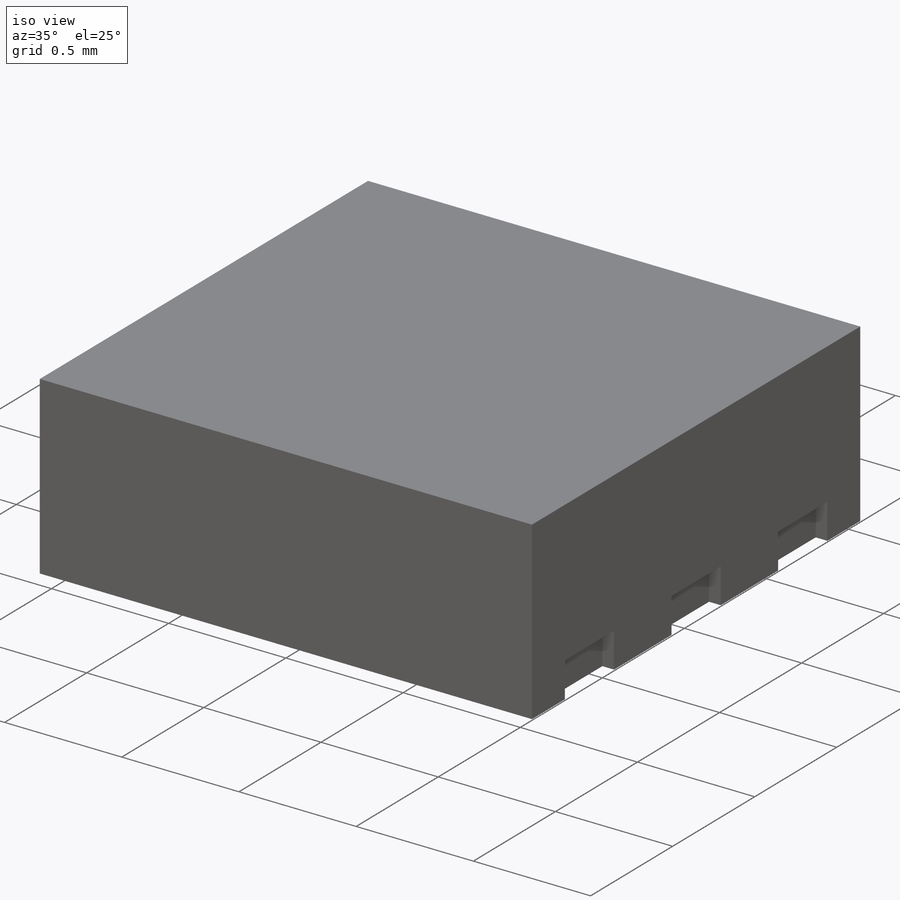
[diagram: iso view]
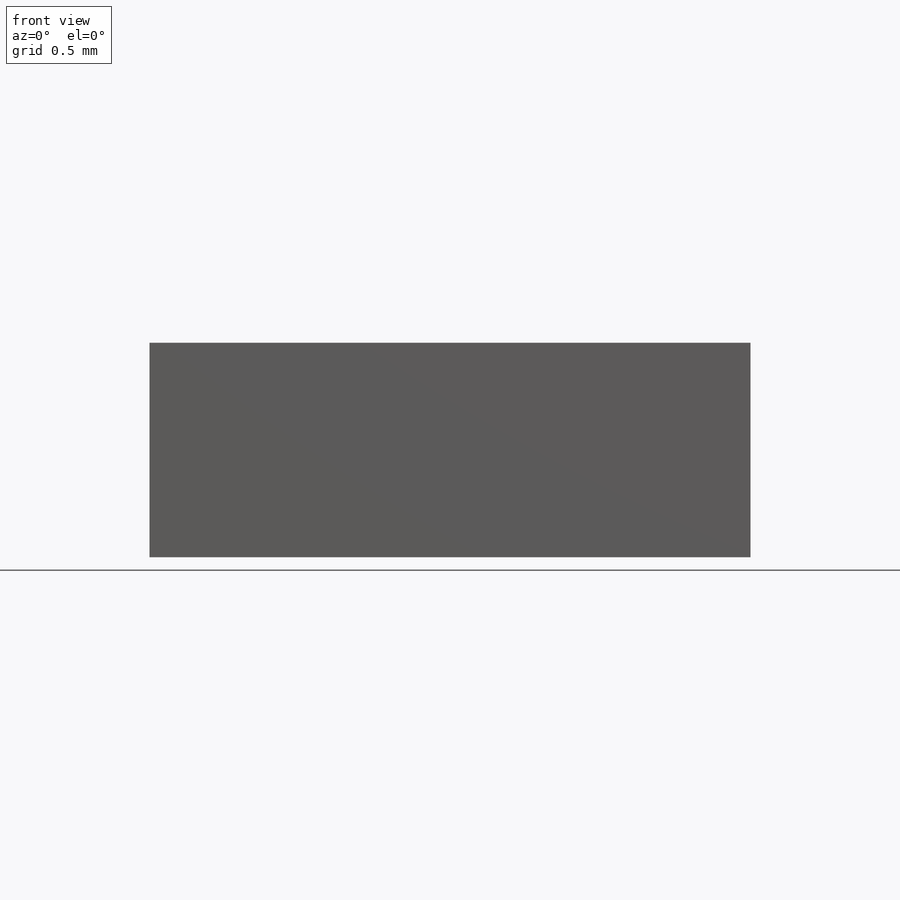
[diagram: front view]
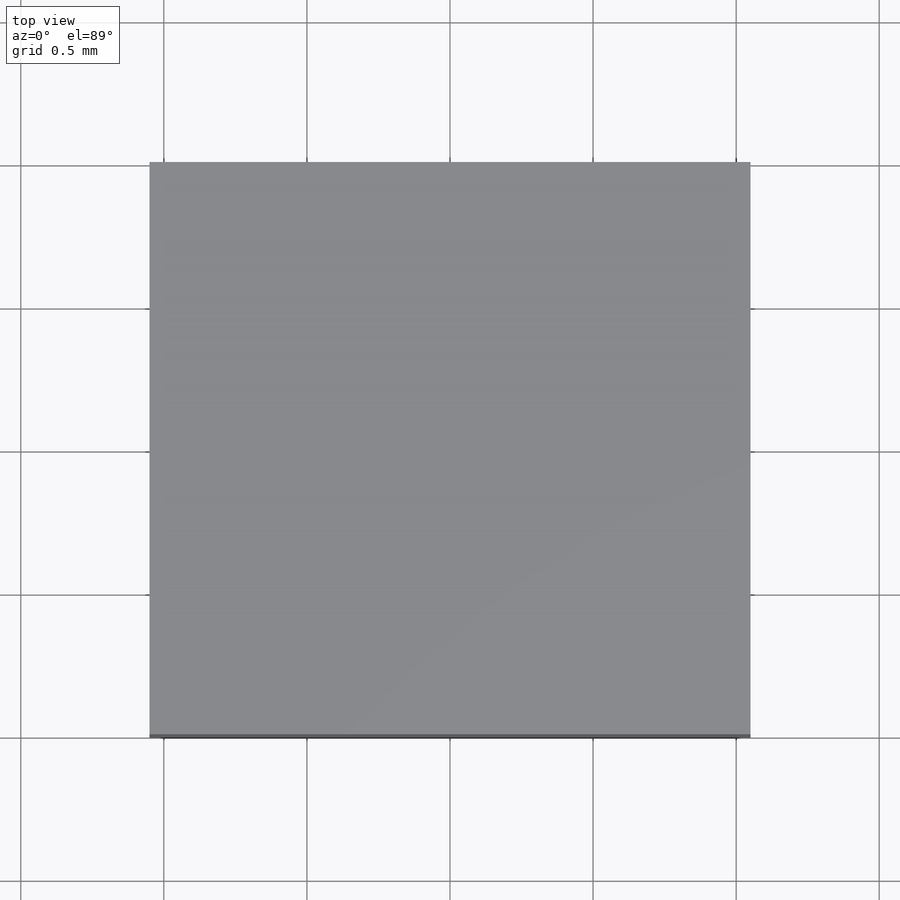
[diagram: top view]
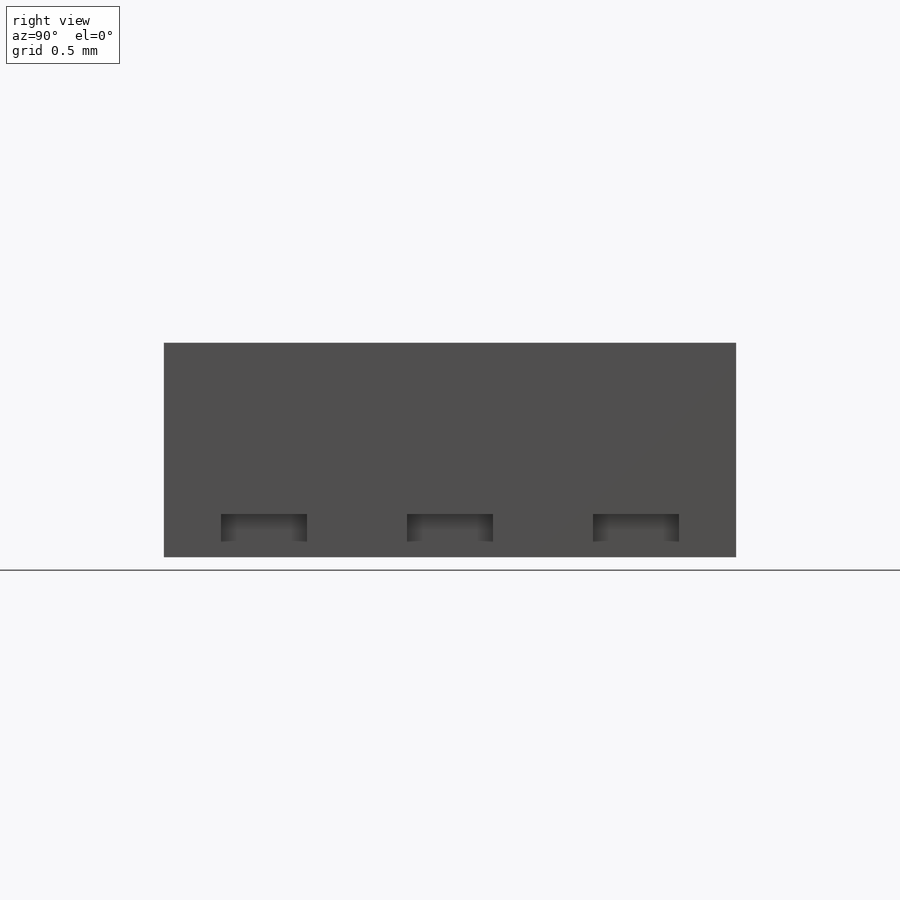
[diagram: right view]
SOLIDWORKS PART (.sldprt)
format: sldprt  version: not decoded by parser v0  size: 246,784 bytes
history: native  units: mm
features: sketch x3, cut_extrude x2, material x1, extrude x1, mirror x1 (+16 scaffold rows collapsed)
feature tree (24):
  scaffold x16  (default folders/planes/origin — collapsed)
  material  "ABS PC"
  sketch  "Sketch1"  dims[D1=2.1mm D2=2.0mm]
  extrude  "Boss-Extrude1"  Depth=0.75mm
  sketch  "Sketch2"  dims[D1=0.3mm D2=0.65mm D3=0.65mm D4=0.05mm D5=0.2mm]
  cut_extrude  "Cut-Extrude1"  Depth=0.05mm
  mirror  "Mirror1"
  sketch  "Sketch3"  dims[D1=0.65mm D2=1.35mm]
  cut_extrude  "Cut-Extrude2"  Depth=0.01mm
decode coverage: 6 of 7 modeling features carry decoded parameters
note: suppression state not decoded; provenance and decode notes live in map.json
